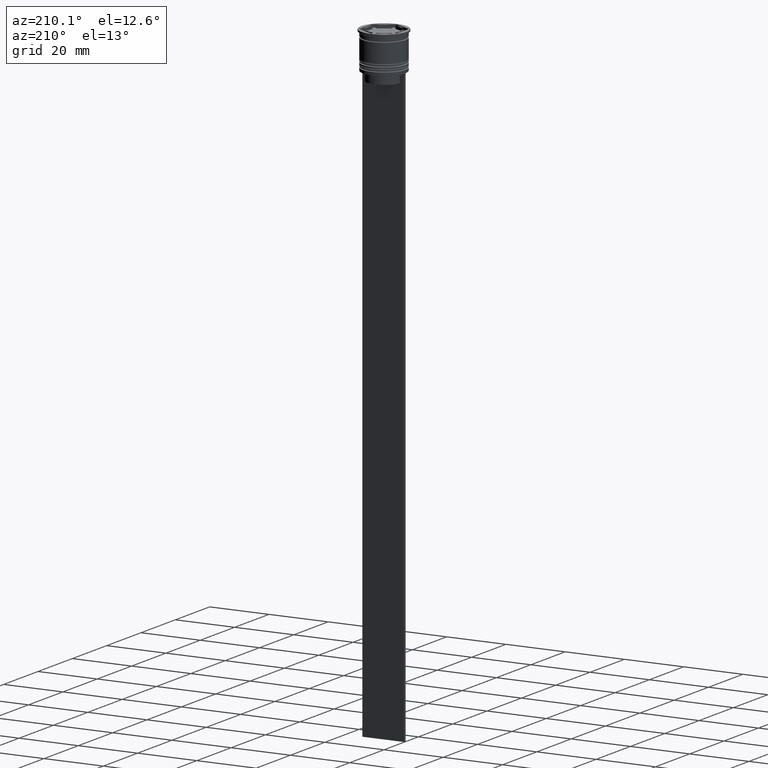
[diagram: clean part render]
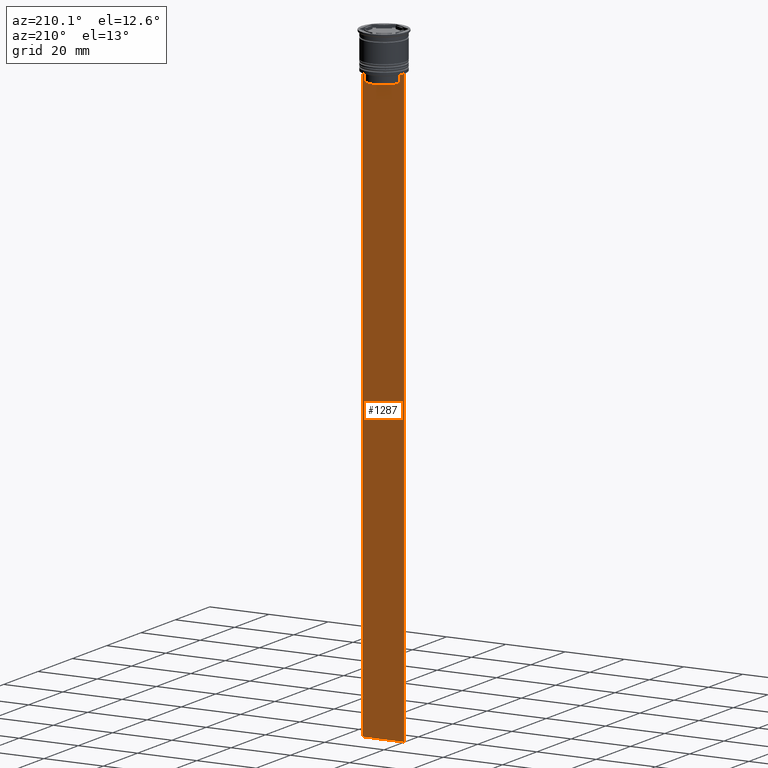
[diagram: same view with one face highlighted and labeled with its STEP entity id]
A machine part, auxiliary view. The second image highlights one B-rep face of the part: STEP entity #1287.
In plain terms, the highlighted planar face has unit normal (0, -1, -0).
Its self-contained STEP definition (entity closure, byte-faithful):
#7 = LINE ( 'NONE', #158, #2155 ) ;
#51 = EDGE_CURVE ( 'NONE', #1454, #1685, #533, .T. ) ;
#54 = DIRECTION ( 'NONE',  ( -1.000000000000000000, 0.000000000000000000, 0.000000000000000000 ) ) ;
#100 = VECTOR ( 'NONE', #580, 1000.000000000000000 ) ;
#151 = DIRECTION ( 'NONE',  ( 1.000000000000000000, 0.000000000000000000, 0.000000000000000000 ) ) ;
#158 = CARTESIAN_POINT ( 'NONE',  ( 0.000000000000000000, 0.4999999999999978351, -15.50000000000000000 ) ) ;
#227 = DIRECTION ( 'NONE',  ( 0.000000000000000000, 0.000000000000000000, -1.000000000000000000 ) ) ;
#251 = CARTESIAN_POINT ( 'NONE',  ( -5.627832620112292794, 0.4999999999999978351, -13.00000000000000000 ) ) ;
#261 = CARTESIAN_POINT ( 'NONE',  ( 7.000000000000012434, 0.4999999999999978351, -12.50000000000000000 ) ) ;
#285 = VECTOR ( 'NONE', #1904, 1000.000000000000000 ) ;
#287 = LINE ( 'NONE', #325, #1417 ) ;
#295 = VERTEX_POINT ( 'NONE', #1382 ) ;
#311 = CARTESIAN_POINT ( 'NONE',  ( 6.129641098791995368, 0.4999999999999978351, -12.50000000000000000 ) ) ;
#325 = CARTESIAN_POINT ( 'NONE',  ( 7.000000000000012434, 0.4999999999999978351, -12.50000000000000000 ) ) ;
#335 = CARTESIAN_POINT ( 'NONE',  ( 6.129641098791995368, 0.4999999999999978351, -12.50000000000000000 ) ) ;
#379 = VERTEX_POINT ( 'NONE', #914 ) ;
#416 = VERTEX_POINT ( 'NONE', #525 ) ;
#422 = LINE ( 'NONE', #2057, #1847 ) ;
#427 = CARTESIAN_POINT ( 'NONE',  ( -6.129641098791995368, 0.4999999999999978351, -12.50000000000000000 ) ) ;
#437 = LINE ( 'NONE', #261, #1147 ) ;
#473 = DIRECTION ( 'NONE',  ( -0.000000000000000000, -0.000000000000000000, 1.000000000000000000 ) ) ;
#510 = CARTESIAN_POINT ( 'NONE',  ( 7.000000000000012434, 0.4999999999999978351, 1.535668847618198329 ) ) ;
#525 = CARTESIAN_POINT ( 'NONE',  ( -5.627832620112292794, 0.4999999999999978351, -15.50000000000000000 ) ) ;
#533 = LINE ( 'NONE', #2025, #1182 ) ;
#566 = AXIS2_PLACEMENT_3D ( 'NONE', #510, #1827, #227 ) ;
#580 = DIRECTION ( 'NONE',  ( 0.000000000000000000, 0.000000000000000000, -1.000000000000000000 ) ) ;
#670 = DIRECTION ( 'NONE',  ( 0.000000000000000000, 0.000000000000000000, -1.000000000000000000 ) ) ;
#685 = B_SPLINE_CURVE_WITH_KNOTS ( 'NONE', 3,
 ( #2312, #2332, #696, #335 ),
 .UNSPECIFIED., .F., .F.,
 ( 4, 4 ),
 ( 0.02651134470867373347, 0.02721991123504337307 ),
 .UNSPECIFIED. ) ;
#696 = CARTESIAN_POINT ( 'NONE',  ( 5.962396079681187011, 0.4999999999999978351, -12.66669137279835411 ) ) ;
#716 = VERTEX_POINT ( 'NONE', #1584 ) ;
#735 = VERTEX_POINT ( 'NONE', #311 ) ;
#745 = ORIENTED_EDGE ( 'NONE', *, *, #772, .T. ) ;
#772 = EDGE_CURVE ( 'NONE', #1454, #295, #287, .T. ) ;
#775 = CARTESIAN_POINT ( 'NONE',  ( -5.627832620112292794, 0.4999999999999978351, 0.000000000000000000 ) ) ;
#878 = LINE ( 'NONE', #2124, #1076 ) ;
#897 = ORIENTED_EDGE ( 'NONE', *, *, #1855, .T. ) ;
#914 = CARTESIAN_POINT ( 'NONE',  ( 7.000000000000012434, 0.4999999999999978351, -212.5000000000000284 ) ) ;
#984 = EDGE_CURVE ( 'NONE', #379, #1685, #422, .T. ) ;
#1041 = VERTEX_POINT ( 'NONE', #1716 ) ;
#1076 = VECTOR ( 'NONE', #473, 1000.000000000000000 ) ;
#1125 = DIRECTION ( 'NONE',  ( 1.000000000000000000, 0.000000000000000000, 0.000000000000000000 ) ) ;
#1147 = VECTOR ( 'NONE', #1125, 1000.000000000000000 ) ;
#1166 = ORIENTED_EDGE ( 'NONE', *, *, #1526, .T. ) ;
#1182 = VECTOR ( 'NONE', #670, 1000.000000000000000 ) ;
#1257 = DIRECTION ( 'NONE',  ( 1.000000000000000000, 0.000000000000000000, 0.000000000000000000 ) ) ;
#1287 = ADVANCED_FACE ( 'NONE', ( #2166 ), #1793, .F. ) ;
#1293 = VERTEX_POINT ( 'NONE', #1602 ) ;
#1314 = EDGE_CURVE ( 'NONE', #416, #716, #7, .T. ) ;
#1375 = ORIENTED_EDGE ( 'NONE', *, *, #1881, .T. ) ;
#1382 = CARTESIAN_POINT ( 'NONE',  ( -6.129641098791995368, 0.4999999999999978351, -12.50000000000000000 ) ) ;
#1417 = VECTOR ( 'NONE', #151, 1000.000000000000000 ) ;
#1454 = VERTEX_POINT ( 'NONE', #1549 ) ;
#1464 = B_SPLINE_CURVE_WITH_KNOTS ( 'NONE', 3,
 ( #427, #1898, #1906, #251 ),
 .UNSPECIFIED., .F., .F.,
 ( 4, 4 ),
 ( 0.01045365750109871796, 0.01116204421161398619 ),
 .UNSPECIFIED. ) ;
#1526 = EDGE_CURVE ( 'NONE', #716, #1041, #878, .T. ) ;
#1549 = CARTESIAN_POINT ( 'NONE',  ( -6.999999999999987566, 0.4999999999999980571, -12.50000000000000000 ) ) ;
#1584 = CARTESIAN_POINT ( 'NONE',  ( 5.627832620112292794, 0.4999999999999978351, -15.50000000000000000 ) ) ;
#1602 = CARTESIAN_POINT ( 'NONE',  ( -5.627832620112292794, 0.4999999999999978351, -13.00000000000000000 ) ) ;
#1685 = VERTEX_POINT ( 'NONE', #2223 ) ;
#1711 = LINE ( 'NONE', #1867, #100 ) ;
#1716 = CARTESIAN_POINT ( 'NONE',  ( 5.627832620112292794, 0.4999999999999978351, -13.00000000000000000 ) ) ;
#1740 = ORIENTED_EDGE ( 'NONE', *, *, #984, .T. ) ;
#1764 = ORIENTED_EDGE ( 'NONE', *, *, #1314, .T. ) ;
#1793 = PLANE ( 'NONE',  #566 ) ;
#1827 = DIRECTION ( 'NONE',  ( 0.000000000000000000, -1.000000000000000000, -0.000000000000000000 ) ) ;
#1847 = VECTOR ( 'NONE', #54, 1000.000000000000000 ) ;
#1855 = EDGE_CURVE ( 'NONE', #2041, #379, #1711, .T. ) ;
#1867 = CARTESIAN_POINT ( 'NONE',  ( 7.000000000000012434, 0.4999999999999978351, 1.535668847618198329 ) ) ;
#1873 = LINE ( 'NONE', #775, #285 ) ;
#1881 = EDGE_CURVE ( 'NONE', #295, #1293, #1464, .T. ) ;
#1898 = CARTESIAN_POINT ( 'NONE',  ( -5.962396146966409738, 0.4999999999999978351, -12.66669130573587054 ) ) ;
#1904 = DIRECTION ( 'NONE',  ( 0.000000000000000000, 0.000000000000000000, -1.000000000000000000 ) ) ;
#1906 = CARTESIAN_POINT ( 'NONE',  ( -5.795128834036803234, 0.4999999999999978351, -12.83336016107156574 ) ) ;
#1953 = ORIENTED_EDGE ( 'NONE', *, *, #2306, .T. ) ;
#1954 = ORIENTED_EDGE ( 'NONE', *, *, #51, .F. ) ;
#1957 = EDGE_CURVE ( 'NONE', #1041, #735, #685, .T. ) ;
#2024 = ORIENTED_EDGE ( 'NONE', *, *, #1957, .T. ) ;
#2025 = CARTESIAN_POINT ( 'NONE',  ( -6.999999999999987566, 0.4999999999999978351, 1.535668847618198329 ) ) ;
#2041 = VERTEX_POINT ( 'NONE', #2122 ) ;
#2057 = CARTESIAN_POINT ( 'NONE',  ( 7.000000000000012434, 0.4999999999999978351, -212.5000000000000284 ) ) ;
#2101 = ORIENTED_EDGE ( 'NONE', *, *, #2303, .T. ) ;
#2122 = CARTESIAN_POINT ( 'NONE',  ( 7.000000000000012434, 0.4999999999999978351, -12.50000000000000000 ) ) ;
#2124 = CARTESIAN_POINT ( 'NONE',  ( 5.627832620112292794, 0.4999999999999978351, 0.000000000000000000 ) ) ;
#2155 = VECTOR ( 'NONE', #1257, 1000.000000000000000 ) ;
#2166 = FACE_OUTER_BOUND ( 'NONE', #2205, .T. ) ;
#2205 = EDGE_LOOP ( 'NONE', ( #745, #1375, #1953, #1764, #1166, #2024, #2101, #897, #1740, #1954 ) ) ;
#2223 = CARTESIAN_POINT ( 'NONE',  ( -6.999999999999987566, 0.4999999999999978351, -212.5000000000000284 ) ) ;
#2303 = EDGE_CURVE ( 'NONE', #735, #2041, #437, .T. ) ;
#2306 = EDGE_CURVE ( 'NONE', #1293, #416, #1873, .T. ) ;
#2312 = CARTESIAN_POINT ( 'NONE',  ( 5.627832620112292794, 0.4999999999999978351, -13.00000000000000000 ) ) ;
#2332 = CARTESIAN_POINT ( 'NONE',  ( 5.795128760752291441, 0.4999999999999978351, -12.83336023406855020 ) ) ;